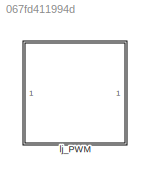
MODEL slx_067fd411994d
KIND library
CONFIG AbsTol = auto
CONFIG EnableMultiTasking = off
CONFIG FixedStep = auto
CONFIG MaxStep = auto
CONFIG MinStep = auto
CONFIG RelTol = 1e-3
CONFIG SampleTimeConstraint = Unconstrained
CONFIG SolverName = VariableStepAuto
CONFIG StartTime = 0.0
CONFIG StopTime = 10.0
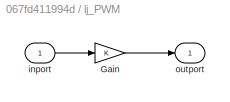
BLOCK [SubSystem] lj_PWM
BLOCK [Gain] lj_PWM/Gain
BLOCK [Inport] lj_PWM/inport
BLOCK [Outport] lj_PWM/outport
LINE lj_PWM/Gain:1 -> lj_PWM/outport:1
LINE lj_PWM/inport:1 -> lj_PWM/Gain:1
